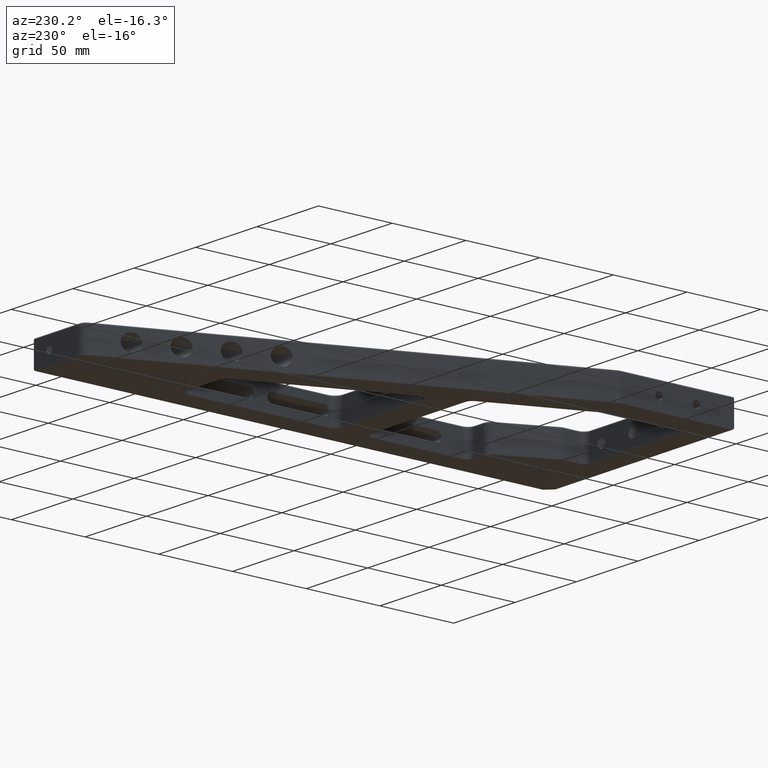
[diagram: clean part render]
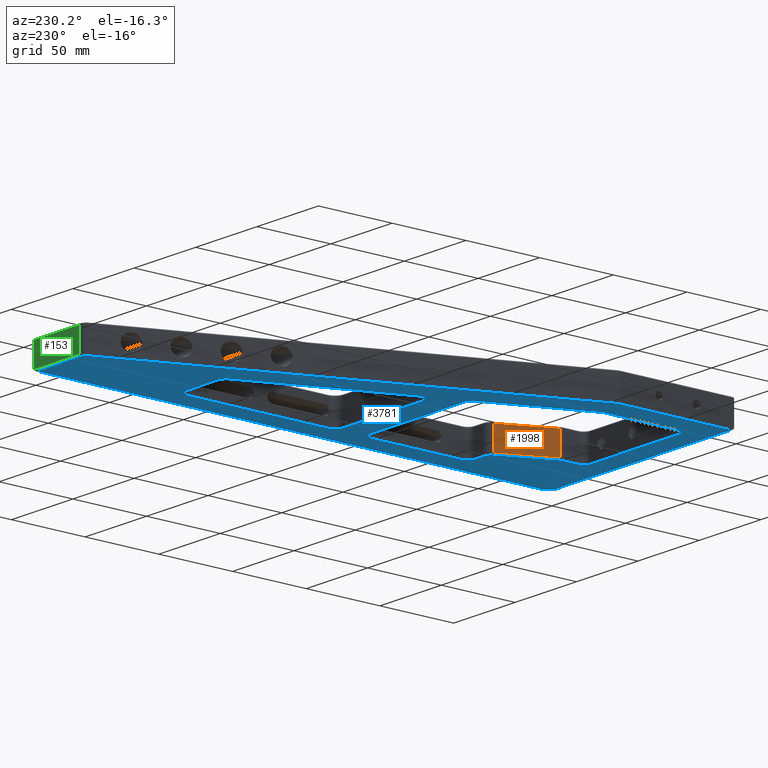
[diagram: same view with three faces highlighted in distinct colors, each labeled with its STEP entity id]
A machine part, auxiliary view with three faces highlighted in distinct colors.
Their STEP definitions:

[orange] entity #1998 — the highlighted planar face has unit normal (0.9087, -0.4175, 0).
#31 = ORIENTED_EDGE ( 'NONE', *, *, #2823, .T. ) ;
#392 = LINE ( 'NONE', #3440, #2690 ) ;
#402 = DIRECTION ( 'NONE',  ( 0.4175001715507113400, 0.9086768439633127200, -0.0000000000000000000 ) ) ;
#576 = ORIENTED_EDGE ( 'NONE', *, *, #5038, .T. ) ;
#693 = EDGE_CURVE ( 'NONE', #1255, #2474, #3971, .T. ) ;
#867 = EDGE_LOOP ( 'NONE', ( #31, #5559, #2348, #576 ) ) ;
#1070 = DIRECTION ( 'NONE',  ( 0.9086768439633127200, -0.4175001715507113400, 0.0000000000000000000 ) ) ;
#1128 = CARTESIAN_POINT ( 'NONE',  ( 100.4566157801834400, 33.99381081569337900, 1.000000000000000900 ) ) ;
#1255 = VERTEX_POINT ( 'NONE', #2140 ) ;
#1316 = DIRECTION ( 'NONE',  ( -0.4175001715507113400, -0.9086768439633127200, -0.0000000000000000000 ) ) ;
#1390 = VECTOR ( 'NONE', #1316, 1000.000000000000000 ) ;
#1709 = VECTOR ( 'NONE', #402, 1000.000000000000000 ) ;
#1998 = ADVANCED_FACE ( 'NONE', ( #4543 ), #2363, .F. ) ;
#2134 = CARTESIAN_POINT ( 'NONE',  ( 100.4566157801834400, 33.99381081569337900, -2.000000000000001800 ) ) ;
#2140 = CARTESIAN_POINT ( 'NONE',  ( 115.6618247184273100, 67.08750085775355400, 1.000000000000000900 ) ) ;
#2348 = ORIENTED_EDGE ( 'NONE', *, *, #4279, .T. ) ;
#2363 = PLANE ( 'NONE',  #3871 ) ;
#2474 = VERTEX_POINT ( 'NONE', #1128 ) ;
#2690 = VECTOR ( 'NONE', #3006, 1000.000000000000000 ) ;
#2801 = CARTESIAN_POINT ( 'NONE',  ( 117.0000000000000000, 70.00000000000000000, -2.000000000000001800 ) ) ;
#2823 = EDGE_CURVE ( 'NONE', #3889, #1255, #392, .T. ) ;
#3006 = DIRECTION ( 'NONE',  ( -0.0000000000000000000, -0.0000000000000000000, -1.000000000000000000 ) ) ;
#3440 = CARTESIAN_POINT ( 'NONE',  ( 115.6618247184273100, 67.08750085775355400, -2.000000000000001800 ) ) ;
#3542 = CARTESIAN_POINT ( 'NONE',  ( 100.4566157801834400, 33.99381081569337900, 17.00000000000001400 ) ) ;
#3871 = AXIS2_PLACEMENT_3D ( 'NONE', #2801, #1070, #4109 ) ;
#3889 = VERTEX_POINT ( 'NONE', #4847 ) ;
#3909 = CARTESIAN_POINT ( 'NONE',  ( 117.0000000000000000, 70.00000000000000000, 1.000000000000000900 ) ) ;
#3971 = LINE ( 'NONE', #3909, #1390 ) ;
#4109 = DIRECTION ( 'NONE',  ( 0.4175001715507113400, 0.9086768439633127200, 0.0000000000000000000 ) ) ;
#4189 = LINE ( 'NONE', #2134, #4450 ) ;
#4279 = EDGE_CURVE ( 'NONE', #2474, #4633, #4189, .T. ) ;
#4450 = VECTOR ( 'NONE', #4733, 1000.000000000000000 ) ;
#4543 = FACE_OUTER_BOUND ( 'NONE', #867, .T. ) ;
#4633 = VERTEX_POINT ( 'NONE', #3542 ) ;
#4726 = CARTESIAN_POINT ( 'NONE',  ( 115.6618247184273100, 67.08750085775355400, 17.00000000000001400 ) ) ;
#4733 = DIRECTION ( 'NONE',  ( 0.0000000000000000000, 0.0000000000000000000, 1.000000000000000000 ) ) ;
#4847 = CARTESIAN_POINT ( 'NONE',  ( 115.6618247184273100, 67.08750085775355400, 17.00000000000001400 ) ) ;
#5038 = EDGE_CURVE ( 'NONE', #4633, #3889, #5165, .T. ) ;
#5165 = LINE ( 'NONE', #4726, #1709 ) ;
#5559 = ORIENTED_EDGE ( 'NONE', *, *, #693, .T. ) ;

[blue] entity #3781 — the highlighted planar face has unit normal (0, 0, 1).
#19 = EDGE_CURVE ( 'NONE', #5241, #626, #4537, .T. ) ;
#67 = DIRECTION ( 'NONE',  ( 1.000000000000000000, -0.0000000000000000000, 0.0000000000000000000 ) ) ;
#85 = VERTEX_POINT ( 'NONE', #2352 ) ;
#97 = ORIENTED_EDGE ( 'NONE', *, *, #5145, .T. ) ;
#120 = DIRECTION ( 'NONE',  ( -0.0000000000000000000, 0.0000000000000000000, 1.000000000000000000 ) ) ;
#162 = CARTESIAN_POINT ( 'NONE',  ( 149.0000000000000000, 0.0000000000000000000, 0.0000000000000000000 ) ) ;
#177 = CARTESIAN_POINT ( 'NONE',  ( 23.99999999999999600, 72.22247876344911800, 0.0000000000000000000 ) ) ;
#179 = CARTESIAN_POINT ( 'NONE',  ( 133.0000000000000000, 74.00000000000001400, 0.0000000000000000000 ) ) ;
#184 = CIRCLE ( 'NONE', #3056, 5.000000000000000900 ) ;
#223 = EDGE_CURVE ( 'NONE', #2839, #3821, #1939, .T. ) ;
#266 = VERTEX_POINT ( 'NONE', #4535 ) ;
#282 = CIRCLE ( 'NONE', #1562, 5.000000000000004400 ) ;
#296 = VECTOR ( 'NONE', #1024, 1000.000000000000000 ) ;
#306 = CARTESIAN_POINT ( 'NONE',  ( 127.0000000000000300, 158.9999999999999700, 0.0000000000000000000 ) ) ;
#342 = LINE ( 'NONE', #1857, #1642 ) ;
#345 = VERTEX_POINT ( 'NONE', #306 ) ;
#366 = LINE ( 'NONE', #3307, #1378 ) ;
#401 = EDGE_CURVE ( 'NONE', #766, #3454, #1328, .T. ) ;
#420 = ORIENTED_EDGE ( 'NONE', *, *, #4466, .T. ) ;
#422 = CARTESIAN_POINT ( 'NONE',  ( 0.0000000000000000000, 0.0000000000000000000, 0.0000000000000000000 ) ) ;
#459 = CARTESIAN_POINT ( 'NONE',  ( 128.0000000000000000, 69.00000000000000000, 0.0000000000000000000 ) ) ;
#473 = VECTOR ( 'NONE', #5400, 1000.000000000000000 ) ;
#474 = CARTESIAN_POINT ( 'NONE',  ( 4.999999999999985800, 76.76854457851666800, 0.0000000000000000000 ) ) ;
#485 = DIRECTION ( 'NONE',  ( -0.0000000000000000000, 0.0000000000000000000, 1.000000000000000000 ) ) ;
#497 = CARTESIAN_POINT ( 'NONE',  ( 149.0000000000000000, 5.414213562373107400, 0.0000000000000000000 ) ) ;
#526 = EDGE_LOOP ( 'NONE', ( #4269, #2484, #4460, #2236, #4545, #5057, #2993, #1211, #4011, #97, #1703, #3470, #2080, #5548, #3765, #652 ) ) ;
#528 = CARTESIAN_POINT ( 'NONE',  ( 62.56308649022202000, 159.0000000000000000, 0.0000000000000000000 ) ) ;
#548 = EDGE_CURVE ( 'NONE', #3068, #2505, #2073, .T. ) ;
#549 = DIRECTION ( 'NONE',  ( -1.000000000000000000, 0.0000000000000000000, -0.0000000000000000000 ) ) ;
#558 = VERTEX_POINT ( 'NONE', #1341 ) ;
#560 = FACE_BOUND ( 'NONE', #2566, .T. ) ;
#607 = DIRECTION ( 'NONE',  ( 1.000000000000000000, 0.0000000000000000000, 0.0000000000000000000 ) ) ;
#626 = VERTEX_POINT ( 'NONE', #3719 ) ;
#637 = CARTESIAN_POINT ( 'NONE',  ( 49.76779119832499300, 136.0000000000000000, 0.0000000000000000000 ) ) ;
#639 = EDGE_CURVE ( 'NONE', #2505, #2461, #1801, .T. ) ;
#652 = ORIENTED_EDGE ( 'NONE', *, *, #4172, .T. ) ;
#717 = AXIS2_PLACEMENT_3D ( 'NONE', #3070, #485, #3499 ) ;
#720 = CARTESIAN_POINT ( 'NONE',  ( 18.99999999999998900, 22.00000000000000700, 0.0000000000000000000 ) ) ;
#766 = VERTEX_POINT ( 'NONE', #3952 ) ;
#828 = ORIENTED_EDGE ( 'NONE', *, *, #3847, .T. ) ;
#855 = CARTESIAN_POINT ( 'NONE',  ( 49.76779119832499300, 141.0000000000000000, 0.0000000000000000000 ) ) ;
#884 = VECTOR ( 'NONE', #1228, 1000.000000000000000 ) ;
#897 = CARTESIAN_POINT ( 'NONE',  ( 127.0000000000000300, 164.9999999999999700, 0.0000000000000000000 ) ) ;
#907 = DIRECTION ( 'NONE',  ( 1.000000000000000000, -3.469446951953613400E-015, 0.0000000000000000000 ) ) ;
#921 = DIRECTION ( 'NONE',  ( -0.0000000000000000000, 0.0000000000000000000, 1.000000000000000000 ) ) ;
#922 = DIRECTION ( 'NONE',  ( -0.0000000000000000000, 0.0000000000000000000, 1.000000000000000000 ) ) ;
#976 = CARTESIAN_POINT ( 'NONE',  ( 0.0000000000000000000, 266.0000000000000000, 0.0000000000000000000 ) ) ;
#988 = LINE ( 'NONE', #976, #3152 ) ;
#993 = AXIS2_PLACEMENT_3D ( 'NONE', #2704, #120, #3136 ) ;
#1024 = DIRECTION ( 'NONE',  ( 0.0000000000000000000, 1.000000000000000000, -0.0000000000000000000 ) ) ;
#1062 = DIRECTION ( 'NONE',  ( 1.000000000000000000, 0.0000000000000000000, 0.0000000000000000000 ) ) ;
#1080 = CARTESIAN_POINT ( 'NONE',  ( 18.99999999999998600, 0.0000000000000000000, 0.0000000000000000000 ) ) ;
#1144 = EDGE_CURVE ( 'NONE', #2286, #558, #3893, .T. ) ;
#1155 = DIRECTION ( 'NONE',  ( 9.251858538542971800E-016, 1.000000000000000000, 0.0000000000000000000 ) ) ;
#1202 = CIRCLE ( 'NONE', #2191, 5.000000000000000900 ) ;
#1211 = ORIENTED_EDGE ( 'NONE', *, *, #3959, .T. ) ;
#1218 = VECTOR ( 'NONE', #1543, 1000.000000000000000 ) ;
#1228 = DIRECTION ( 'NONE',  ( 0.4175001715507113400, 0.9086768439633127200, 0.0000000000000000000 ) ) ;
#1233 = VERTEX_POINT ( 'NONE', #720 ) ;
#1240 = EDGE_CURVE ( 'NONE', #5401, #2839, #366, .T. ) ;
#1296 = DIRECTION ( 'NONE',  ( 1.000000000000000000, 0.0000000000000000000, 0.0000000000000000000 ) ) ;
#1322 = CARTESIAN_POINT ( 'NONE',  ( 0.0000000000000000000, 1.000000000000000900, 0.0000000000000000000 ) ) ;
#1328 = LINE ( 'NONE', #4841, #4181 ) ;
#1334 = LINE ( 'NONE', #1322, #2203 ) ;
#1338 = DIRECTION ( 'NONE',  ( 1.000000000000000000, 0.0000000000000000000, 0.0000000000000000000 ) ) ;
#1341 = CARTESIAN_POINT ( 'NONE',  ( 120.2052089382438900, 69.00000000000000000, 0.0000000000000000000 ) ) ;
#1348 = ORIENTED_EDGE ( 'NONE', *, *, #1931, .T. ) ;
#1376 = DIRECTION ( 'NONE',  ( -1.000000000000000000, -0.0000000000000000000, -0.0000000000000000000 ) ) ;
#1378 = VECTOR ( 'NONE', #1155, 1000.000000000000000 ) ;
#1401 = EDGE_CURVE ( 'NONE', #2461, #2611, #1990, .T. ) ;
#1419 = VERTEX_POINT ( 'NONE', #497 ) ;
#1439 = CARTESIAN_POINT ( 'NONE',  ( 133.0000000000000900, 4.163336342344337000E-014, 0.0000000000000000000 ) ) ;
#1466 = CIRCLE ( 'NONE', #4029, 6.000000000000005300 ) ;
#1506 = DIRECTION ( 'NONE',  ( -0.0000000000000000000, 0.0000000000000000000, 1.000000000000000000 ) ) ;
#1543 = DIRECTION ( 'NONE',  ( -1.757250961937032100E-016, 1.000000000000000000, -0.0000000000000000000 ) ) ;
#1562 = AXIS2_PLACEMENT_3D ( 'NONE', #3511, #922, #3969 ) ;
#1587 = VECTOR ( 'NONE', #4900, 1000.000000000000000 ) ;
#1603 = VERTEX_POINT ( 'NONE', #2445 ) ;
#1642 = VECTOR ( 'NONE', #1930, 1000.000000000000000 ) ;
#1676 = CARTESIAN_POINT ( 'NONE',  ( 70.95873715759418600, -32.60266301835407200, 0.0000000000000000000 ) ) ;
#1699 = AXIS2_PLACEMENT_3D ( 'NONE', #2733, #1906, #4933 ) ;
#1703 = ORIENTED_EDGE ( 'NONE', *, *, #401, .T. ) ;
#1738 = CARTESIAN_POINT ( 'NONE',  ( 101.0000000000000000, 31.90630995793983300, 0.0000000000000000000 ) ) ;
#1801 = CIRCLE ( 'NONE', #5111, 4.000000000000003600 ) ;
#1841 = LINE ( 'NONE', #1439, #1587 ) ;
#1847 = ORIENTED_EDGE ( 'NONE', *, *, #3923, .T. ) ;
#1857 = CARTESIAN_POINT ( 'NONE',  ( -1.734723475976807100E-015, 17.00000000000000000, 0.0000000000000000000 ) ) ;
#1906 = DIRECTION ( 'NONE',  ( 0.0000000000000000000, -0.0000000000000000000, -1.000000000000000000 ) ) ;
#1930 = DIRECTION ( 'NONE',  ( 1.000000000000000000, 8.673617379884035500E-017, 0.0000000000000000000 ) ) ;
#1931 = EDGE_CURVE ( 'NONE', #1603, #266, #3939, .T. ) ;
#1939 = CIRCLE ( 'NONE', #1699, 4.000000000000003600 ) ;
#1940 = DIRECTION ( 'NONE',  ( -0.0000000000000000000, 0.0000000000000000000, 1.000000000000000000 ) ) ;
#1946 = VERTEX_POINT ( 'NONE', #5385 ) ;
#1990 = LINE ( 'NONE', #5260, #2997 ) ;
#2050 = CARTESIAN_POINT ( 'NONE',  ( 100.9999999999999900, 22.00000000000000700, 0.0000000000000000000 ) ) ;
#2073 = LINE ( 'NONE', #4391, #5396 ) ;
#2080 = ORIENTED_EDGE ( 'NONE', *, *, #5153, .T. ) ;
#2084 = AXIS2_PLACEMENT_3D ( 'NONE', #2439, #5469, #2867 ) ;
#2144 = EDGE_CURVE ( 'NONE', #3849, #85, #1841, .T. ) ;
#2145 = DIRECTION ( 'NONE',  ( 1.000000000000000000, -1.387778780781444400E-014, 0.0000000000000000000 ) ) ;
#2146 = CIRCLE ( 'NONE', #717, 5.000000000000004400 ) ;
#2166 = VECTOR ( 'NONE', #3079, 1000.000000000000000 ) ;
#2172 = LINE ( 'NONE', #1676, #884 ) ;
#2191 = AXIS2_PLACEMENT_3D ( 'NONE', #177, #3191, #607 ) ;
#2194 = CARTESIAN_POINT ( 'NONE',  ( 113.3725425842121100, 345.0000000000000000, 0.0000000000000000000 ) ) ;
#2203 = VECTOR ( 'NONE', #1376, 1000.000000000000000 ) ;
#2212 = CARTESIAN_POINT ( 'NONE',  ( 133.0000000000000300, 164.9999999999999700, 0.0000000000000000000 ) ) ;
#2216 = EDGE_CURVE ( 'NONE', #4685, #3671, #2585, .T. ) ;
#2218 = CARTESIAN_POINT ( 'NONE',  ( 19.36408072716606200, 74.09551173052867100, 0.0000000000000000000 ) ) ;
#2236 = ORIENTED_EDGE ( 'NONE', *, *, #223, .T. ) ;
#2268 = CARTESIAN_POINT ( 'NONE',  ( 0.0000000000000000000, 69.00000000000000000, 0.0000000000000000000 ) ) ;
#2286 = VERTEX_POINT ( 'NONE', #3213 ) ;
#2316 = CARTESIAN_POINT ( 'NONE',  ( 133.0000000000000000, 0.0000000000000000000, 0.0000000000000000000 ) ) ;
#2325 = DIRECTION ( 'NONE',  ( -0.0000000000000000000, -1.000000000000000000, -0.0000000000000000000 ) ) ;
#2338 = CARTESIAN_POINT ( 'NONE',  ( 120.2052089382438900, 65.00000000000000000, 0.0000000000000000000 ) ) ;
#2352 = CARTESIAN_POINT ( 'NONE',  ( 133.0000000000000300, 260.0000000000000000, 0.0000000000000000000 ) ) ;
#2400 = CARTESIAN_POINT ( 'NONE',  ( 1.000000000000000000, 0.0000000000000000000, 0.0000000000000000000 ) ) ;
#2412 = EDGE_CURVE ( 'NONE', #3454, #4750, #2526, .T. ) ;
#2438 = VERTEX_POINT ( 'NONE', #4122 ) ;
#2439 = CARTESIAN_POINT ( 'NONE',  ( 100.9455779445615500, 260.0000000000000000, 0.0000000000000000000 ) ) ;
#2445 = CARTESIAN_POINT ( 'NONE',  ( 95.38247481716082600, 262.2476395604954900, 0.0000000000000000000 ) ) ;
#2461 = VERTEX_POINT ( 'NONE', #3723 ) ;
#2484 = ORIENTED_EDGE ( 'NONE', *, *, #3901, .T. ) ;
#2505 = VERTEX_POINT ( 'NONE', #5495 ) ;
#2513 = DIRECTION ( 'NONE',  ( -0.7071067811865474600, -0.7071067811865474600, -0.0000000000000000000 ) ) ;
#2526 = CIRCLE ( 'NONE', #3951, 4.999999999999997300 ) ;
#2539 = CARTESIAN_POINT ( 'NONE',  ( 149.0000000000000000, 349.0000000000000000, 0.0000000000000000000 ) ) ;
#2564 = PLANE ( 'NONE',  #5363 ) ;
#2566 = EDGE_LOOP ( 'NONE', ( #4689, #4291, #1847, #4295, #1348, #828, #3960, #2979 ) ) ;
#2585 = LINE ( 'NONE', #2316, #296 ) ;
#2588 = DIRECTION ( 'NONE',  ( 0.0000000000000000000, -0.0000000000000000000, -1.000000000000000000 ) ) ;
#2593 = ORIENTED_EDGE ( 'NONE', *, *, #3300, .T. ) ;
#2599 = EDGE_CURVE ( 'NONE', #3821, #2286, #2172, .T. ) ;
#2611 = VERTEX_POINT ( 'NONE', #2539 ) ;
#2635 = LINE ( 'NONE', #2268, #4808 ) ;
#2704 = CARTESIAN_POINT ( 'NONE',  ( 95.99999999999998600, 22.00000000000000700, 0.0000000000000000000 ) ) ;
#2710 = ORIENTED_EDGE ( 'NONE', *, *, #3829, .T. ) ;
#2731 = VECTOR ( 'NONE', #3785, 1000.000000000000000 ) ;
#2733 = CARTESIAN_POINT ( 'NONE',  ( 105.0000000000000100, 31.90630995793981800, 0.0000000000000000000 ) ) ;
#2738 = AXIS2_PLACEMENT_3D ( 'NONE', #3509, #921, #3968 ) ;
#2743 = CARTESIAN_POINT ( 'NONE',  ( 1.291264581732802800, 78.26697095218024500, 0.0000000000000000000 ) ) ;
#2774 = DIRECTION ( 'NONE',  ( 1.000000000000000000, 0.0000000000000000000, 0.0000000000000000000 ) ) ;
#2817 = CARTESIAN_POINT ( 'NONE',  ( -9.088816372933486300, 3.672120176465065700, 0.0000000000000000000 ) ) ;
#2831 = VERTEX_POINT ( 'NONE', #4765 ) ;
#2839 = VERTEX_POINT ( 'NONE', #1738 ) ;
#2867 = DIRECTION ( 'NONE',  ( 1.000000000000000000, 0.0000000000000000000, 0.0000000000000000000 ) ) ;
#2979 = ORIENTED_EDGE ( 'NONE', *, *, #4377, .T. ) ;
#2993 = ORIENTED_EDGE ( 'NONE', *, *, #5217, .T. ) ;
#2997 = VECTOR ( 'NONE', #67, 1000.000000000000000 ) ;
#3056 = AXIS2_PLACEMENT_3D ( 'NONE', #4099, #1506, #4533 ) ;
#3068 = VERTEX_POINT ( 'NONE', #2743 ) ;
#3070 = CARTESIAN_POINT ( 'NONE',  ( 128.0000000000000000, 74.00000000000001400, 0.0000000000000000000 ) ) ;
#3071 = EDGE_CURVE ( 'NONE', #2611, #1419, #4665, .T. ) ;
#3079 = DIRECTION ( 'NONE',  ( -0.3746065934159091800, -0.9271838545667885300, 0.0000000000000000000 ) ) ;
#3136 = DIRECTION ( 'NONE',  ( 1.000000000000000000, 0.0000000000000000000, 0.0000000000000000000 ) ) ;
#3152 = VECTOR ( 'NONE', #549, 1000.000000000000000 ) ;
#3165 = EDGE_CURVE ( 'NONE', #4728, #1233, #5542, .T. ) ;
#3174 = CIRCLE ( 'NONE', #3500, 6.000000000000005300 ) ;
#3191 = DIRECTION ( 'NONE',  ( -0.0000000000000000000, 0.0000000000000000000, 1.000000000000000000 ) ) ;
#3213 = CARTESIAN_POINT ( 'NONE',  ( 116.5705015623906300, 66.67000068620285400, 0.0000000000000000000 ) ) ;
#3217 = VECTOR ( 'NONE', #4116, 1000.000000000000000 ) ;
#3228 = EDGE_CURVE ( 'NONE', #1946, #1603, #5272, .T. ) ;
#3230 = CARTESIAN_POINT ( 'NONE',  ( 18.99999999999999600, 72.22247876344911800, 0.0000000000000000000 ) ) ;
#3300 = EDGE_CURVE ( 'NONE', #1419, #2831, #3413, .T. ) ;
#3307 = CARTESIAN_POINT ( 'NONE',  ( 100.9999999999999700, -9.714451465470119700E-014, 0.0000000000000000000 ) ) ;
#3335 = EDGE_CURVE ( 'NONE', #5205, #345, #3897, .T. ) ;
#3340 = ORIENTED_EDGE ( 'NONE', *, *, #1401, .T. ) ;
#3413 = LINE ( 'NONE', #5536, #4576 ) ;
#3454 = VERTEX_POINT ( 'NONE', #855 ) ;
#3470 = ORIENTED_EDGE ( 'NONE', *, *, #2412, .T. ) ;
#3490 = VECTOR ( 'NONE', #2325, 1000.000000000000000 ) ;
#3493 = DIRECTION ( 'NONE',  ( 0.0000000000000000000, -0.0000000000000000000, -1.000000000000000000 ) ) ;
#3499 = DIRECTION ( 'NONE',  ( 1.000000000000000000, 0.0000000000000000000, 0.0000000000000000000 ) ) ;
#3500 = AXIS2_PLACEMENT_3D ( 'NONE', #4534, #1940, #4977 ) ;
#3509 = CARTESIAN_POINT ( 'NONE',  ( 62.56308649022202000, 165.0000000000000000, 0.0000000000000000000 ) ) ;
#3511 = CARTESIAN_POINT ( 'NONE',  ( 128.0000000000000000, 136.0000000000000000, 0.0000000000000000000 ) ) ;
#3512 = VERTEX_POINT ( 'NONE', #4776 ) ;
#3564 = CIRCLE ( 'NONE', #2738, 6.000000000000005300 ) ;
#3575 = CARTESIAN_POINT ( 'NONE',  ( 1.000000000000000000, 1.000000000000000900, 0.0000000000000000000 ) ) ;
#3603 = AXIS2_PLACEMENT_3D ( 'NONE', #474, #3493, #907 ) ;
#3658 = DIRECTION ( 'NONE',  ( -0.0000000000000000000, 0.0000000000000000000, 1.000000000000000000 ) ) ;
#3671 = VERTEX_POINT ( 'NONE', #4884 ) ;
#3719 = CARTESIAN_POINT ( 'NONE',  ( 0.9999999999999865700, 76.76854457851666800, 0.0000000000000000000 ) ) ;
#3723 = CARTESIAN_POINT ( 'NONE',  ( 113.3725425842121100, 349.0000000000000000, 0.0000000000000000000 ) ) ;
#3765 = ORIENTED_EDGE ( 'NONE', *, *, #3165, .T. ) ;
#3781 = ADVANCED_FACE ( 'NONE', ( #4771, #5060, #560 ), #2564, .F. ) ;
#3785 = DIRECTION ( 'NONE',  ( 1.000000000000000000, -3.611669139550354700E-016, 0.0000000000000000000 ) ) ;
#3814 = VERTEX_POINT ( 'NONE', #459 ) ;
#3821 = VERTEX_POINT ( 'NONE', #3927 ) ;
#3829 = EDGE_CURVE ( 'NONE', #626, #3068, #4856, .T. ) ;
#3847 = EDGE_CURVE ( 'NONE', #266, #5205, #3564, .T. ) ;
#3849 = VERTEX_POINT ( 'NONE', #2212 ) ;
#3893 = CIRCLE ( 'NONE', #5528, 4.000000000000003600 ) ;
#3894 = DIRECTION ( 'NONE',  ( -0.0000000000000000000, 0.0000000000000000000, 1.000000000000000000 ) ) ;
#3897 = LINE ( 'NONE', #5520, #2731 ) ;
#3901 = EDGE_CURVE ( 'NONE', #3512, #5401, #5482, .T. ) ;
#3921 = DIRECTION ( 'NONE',  ( 0.3746065934159093500, 0.9271838545667884200, -0.0000000000000000000 ) ) ;
#3923 = EDGE_CURVE ( 'NONE', #5214, #1946, #988, .T. ) ;
#3927 = CARTESIAN_POINT ( 'NONE',  ( 101.3652926241467600, 33.57631064414266600, 0.0000000000000000000 ) ) ;
#3938 = DIRECTION ( 'NONE',  ( -0.0000000000000000000, 0.0000000000000000000, 1.000000000000000000 ) ) ;
#3939 = LINE ( 'NONE', #2817, #473 ) ;
#3951 = AXIS2_PLACEMENT_3D ( 'NONE', #637, #3658, #1062 ) ;
#3952 = CARTESIAN_POINT ( 'NONE',  ( 128.0000000000000000, 141.0000000000000000, 0.0000000000000000000 ) ) ;
#3953 = CARTESIAN_POINT ( 'NONE',  ( -9.088816372933468600, 3.672120176465052000, 0.0000000000000000000 ) ) ;
#3959 = EDGE_CURVE ( 'NONE', #3814, #4685, #2146, .T. ) ;
#3960 = ORIENTED_EDGE ( 'NONE', *, *, #3335, .T. ) ;
#3968 = DIRECTION ( 'NONE',  ( 1.000000000000000000, 0.0000000000000000000, 0.0000000000000000000 ) ) ;
#3969 = DIRECTION ( 'NONE',  ( 1.000000000000000000, 0.0000000000000000000, 0.0000000000000000000 ) ) ;
#4011 = ORIENTED_EDGE ( 'NONE', *, *, #2216, .T. ) ;
#4027 = CARTESIAN_POINT ( 'NONE',  ( 127.0000000000000000, 266.0000000000000000, 0.0000000000000000000 ) ) ;
#4029 = AXIS2_PLACEMENT_3D ( 'NONE', #897, #3938, #1338 ) ;
#4099 = CARTESIAN_POINT ( 'NONE',  ( 23.99999999999999300, 22.00000000000000700, 0.0000000000000000000 ) ) ;
#4116 = DIRECTION ( 'NONE',  ( -1.261617073437678500E-016, -1.000000000000000000, 0.0000000000000000000 ) ) ;
#4122 = CARTESIAN_POINT ( 'NONE',  ( 23.99999999999999300, 17.00000000000000000, 0.0000000000000000000 ) ) ;
#4144 = CARTESIAN_POINT ( 'NONE',  ( 45.13187192549104100, 137.8730329670795200, 0.0000000000000000000 ) ) ;
#4153 = EDGE_CURVE ( 'NONE', #4428, #4728, #1202, .T. ) ;
#4172 = EDGE_CURVE ( 'NONE', #1233, #2438, #184, .T. ) ;
#4181 = VECTOR ( 'NONE', #4806, 1000.000000000000000 ) ;
#4269 = ORIENTED_EDGE ( 'NONE', *, *, #5242, .T. ) ;
#4291 = ORIENTED_EDGE ( 'NONE', *, *, #4714, .T. ) ;
#4295 = ORIENTED_EDGE ( 'NONE', *, *, #3228, .T. ) ;
#4344 = EDGE_LOOP ( 'NONE', ( #2593, #420, #5551, #2710, #4640, #4870, #3340, #5600 ) ) ;
#4377 = EDGE_CURVE ( 'NONE', #345, #3849, #1466, .T. ) ;
#4391 = CARTESIAN_POINT ( 'NONE',  ( -26.07434195713099000, 10.53471797207482300, 0.0000000000000000000 ) ) ;
#4428 = VERTEX_POINT ( 'NONE', #2218 ) ;
#4453 = DIRECTION ( 'NONE',  ( 1.000000000000000000, 0.0000000000000000000, 0.0000000000000000000 ) ) ;
#4460 = ORIENTED_EDGE ( 'NONE', *, *, #1240, .T. ) ;
#4466 = EDGE_CURVE ( 'NONE', #2831, #5241, #1334, .T. ) ;
#4533 = DIRECTION ( 'NONE',  ( 1.000000000000000000, 0.0000000000000000000, 0.0000000000000000000 ) ) ;
#4534 = CARTESIAN_POINT ( 'NONE',  ( 127.0000000000000000, 260.0000000000000000, 0.0000000000000000000 ) ) ;
#4535 = CARTESIAN_POINT ( 'NONE',  ( 56.99998336282126100, 167.2476395604954600, 0.0000000000000000000 ) ) ;
#4537 = LINE ( 'NONE', #2400, #1218 ) ;
#4545 = ORIENTED_EDGE ( 'NONE', *, *, #2599, .T. ) ;
#4576 = VECTOR ( 'NONE', #2513, 1000.000000000000100 ) ;
#4640 = ORIENTED_EDGE ( 'NONE', *, *, #548, .T. ) ;
#4665 = LINE ( 'NONE', #162, #3490 ) ;
#4685 = VERTEX_POINT ( 'NONE', #179 ) ;
#4689 = ORIENTED_EDGE ( 'NONE', *, *, #2144, .T. ) ;
#4714 = EDGE_CURVE ( 'NONE', #85, #5214, #3174, .T. ) ;
#4728 = VERTEX_POINT ( 'NONE', #3230 ) ;
#4750 = VERTEX_POINT ( 'NONE', #4144 ) ;
#4765 = CARTESIAN_POINT ( 'NONE',  ( 144.5857864376268700, 0.9999999999999870100, 0.0000000000000000000 ) ) ;
#4771 = FACE_OUTER_BOUND ( 'NONE', #4344, .T. ) ;
#4776 = CARTESIAN_POINT ( 'NONE',  ( 95.99999999999998600, 17.00000000000001400, 0.0000000000000000000 ) ) ;
#4806 = DIRECTION ( 'NONE',  ( -1.000000000000000000, 0.0000000000000000000, -0.0000000000000000000 ) ) ;
#4808 = VECTOR ( 'NONE', #4453, 1000.000000000000000 ) ;
#4841 = CARTESIAN_POINT ( 'NONE',  ( 0.0000000000000000000, 141.0000000000000000, 0.0000000000000000000 ) ) ;
#4856 = CIRCLE ( 'NONE', #3603, 4.000000000000000900 ) ;
#4870 = ORIENTED_EDGE ( 'NONE', *, *, #639, .T. ) ;
#4875 = LINE ( 'NONE', #3953, #2166 ) ;
#4884 = CARTESIAN_POINT ( 'NONE',  ( 133.0000000000000000, 136.0000000000000000, 0.0000000000000000000 ) ) ;
#4900 = DIRECTION ( 'NONE',  ( -2.643388153869419300E-016, 1.000000000000000000, -0.0000000000000000000 ) ) ;
#4933 = DIRECTION ( 'NONE',  ( 1.000000000000000000, 0.0000000000000000000, 0.0000000000000000000 ) ) ;
#4977 = DIRECTION ( 'NONE',  ( 1.000000000000000000, 0.0000000000000000000, 0.0000000000000000000 ) ) ;
#5057 = ORIENTED_EDGE ( 'NONE', *, *, #1144, .T. ) ;
#5060 = FACE_BOUND ( 'NONE', #526, .T. ) ;
#5111 = AXIS2_PLACEMENT_3D ( 'NONE', #2194, #2588, #2145 ) ;
#5145 = EDGE_CURVE ( 'NONE', #3671, #766, #282, .T. ) ;
#5153 = EDGE_CURVE ( 'NONE', #4750, #4428, #4875, .T. ) ;
#5205 = VERTEX_POINT ( 'NONE', #528 ) ;
#5214 = VERTEX_POINT ( 'NONE', #4027 ) ;
#5217 = EDGE_CURVE ( 'NONE', #558, #3814, #2635, .T. ) ;
#5241 = VERTEX_POINT ( 'NONE', #3575 ) ;
#5242 = EDGE_CURVE ( 'NONE', #2438, #3512, #342, .T. ) ;
#5260 = CARTESIAN_POINT ( 'NONE',  ( 0.0000000000000000000, 349.0000000000000000, 0.0000000000000000000 ) ) ;
#5272 = CIRCLE ( 'NONE', #2084, 6.000000000000005300 ) ;
#5363 = AXIS2_PLACEMENT_3D ( 'NONE', #422, #3894, #1296 ) ;
#5380 = DIRECTION ( 'NONE',  ( 0.0000000000000000000, -0.0000000000000000000, -1.000000000000000000 ) ) ;
#5385 = CARTESIAN_POINT ( 'NONE',  ( 100.9455779445615500, 266.0000000000000000, 0.0000000000000000000 ) ) ;
#5396 = VECTOR ( 'NONE', #3921, 1000.000000000000100 ) ;
#5400 = DIRECTION ( 'NONE',  ( -0.3746065934159091300, -0.9271838545667885300, 0.0000000000000000000 ) ) ;
#5401 = VERTEX_POINT ( 'NONE', #2050 ) ;
#5469 = DIRECTION ( 'NONE',  ( -0.0000000000000000000, 0.0000000000000000000, 1.000000000000000000 ) ) ;
#5482 = CIRCLE ( 'NONE', #993, 5.000000000000004400 ) ;
#5495 = CARTESIAN_POINT ( 'NONE',  ( 109.6638071659449700, 346.4984263736635600, 0.0000000000000000000 ) ) ;
#5520 = CARTESIAN_POINT ( 'NONE',  ( 5.724587470723463400E-014, 159.0000000000000300, 0.0000000000000000000 ) ) ;
#5528 = AXIS2_PLACEMENT_3D ( 'NONE', #2338, #5380, #2774 ) ;
#5536 = CARTESIAN_POINT ( 'NONE',  ( 144.2928932188134500, 0.7071067811865589000, 0.0000000000000000000 ) ) ;
#5542 = LINE ( 'NONE', #1080, #3217 ) ;
#5548 = ORIENTED_EDGE ( 'NONE', *, *, #4153, .T. ) ;
#5551 = ORIENTED_EDGE ( 'NONE', *, *, #19, .T. ) ;
#5600 = ORIENTED_EDGE ( 'NONE', *, *, #3071, .T. ) ;

[green] entity #153 — the highlighted planar face has unit normal (0, -1, 0).
#20 = DIRECTION ( 'NONE',  ( -1.000000000000000000, 0.0000000000000000000, 0.0000000000000000000 ) ) ;
#45 = FACE_OUTER_BOUND ( 'NONE', #4215, .T. ) ;
#153 = ADVANCED_FACE ( 'NONE', ( #1047, #45 ), #2329, .F. ) ;
#163 = EDGE_CURVE ( 'NONE', #3498, #5277, #4383, .T. ) ;
#239 = AXIS2_PLACEMENT_3D ( 'NONE', #1126, #4597, #1571 ) ;
#322 = LINE ( 'NONE', #3479, #3621 ) ;
#486 = CARTESIAN_POINT ( 'NONE',  ( 150.0000000000000000, 350.0000000000000000, 17.00000000000001400 ) ) ;
#590 = EDGE_CURVE ( 'NONE', #5582, #1829, #643, .T. ) ;
#643 = LINE ( 'NONE', #486, #5139 ) ;
#669 = CARTESIAN_POINT ( 'NONE',  ( 137.3000000000000100, 350.0000000000000000, 9.000000000000007100 ) ) ;
#738 = VERTEX_POINT ( 'NONE', #3475 ) ;
#1003 = VERTEX_POINT ( 'NONE', #4194 ) ;
#1047 = FACE_BOUND ( 'NONE', #1300, .T. ) ;
#1107 = DIRECTION ( 'NONE',  ( 0.0000000000000000000, 0.0000000000000000000, 1.000000000000000000 ) ) ;
#1126 = CARTESIAN_POINT ( 'NONE',  ( 150.0000000000000000, 350.0000000000000000, 18.00000000000001400 ) ) ;
#1131 = ORIENTED_EDGE ( 'NONE', *, *, #590, .T. ) ;
#1300 = EDGE_LOOP ( 'NONE', ( #4863, #2283 ) ) ;
#1336 = CARTESIAN_POINT ( 'NONE',  ( 113.3725425842121100, 350.0000000000000000, 17.00000000000001400 ) ) ;
#1445 = ORIENTED_EDGE ( 'NONE', *, *, #4961, .T. ) ;
#1454 = DIRECTION ( 'NONE',  ( -0.0000000000000000000, 1.000000000000000000, -0.0000000000000000000 ) ) ;
#1571 = DIRECTION ( 'NONE',  ( 0.0000000000000000000, -0.0000000000000000000, -1.000000000000000000 ) ) ;
#1783 = AXIS2_PLACEMENT_3D ( 'NONE', #669, #3695, #1107 ) ;
#1813 = LINE ( 'NONE', #3420, #4120 ) ;
#1829 = VERTEX_POINT ( 'NONE', #3607 ) ;
#2090 = CARTESIAN_POINT ( 'NONE',  ( 150.0000000000000000, 350.0000000000000000, 18.00000000000001400 ) ) ;
#2107 = LINE ( 'NONE', #2090, #4546 ) ;
#2125 = DIRECTION ( 'NONE',  ( -0.0000000000000000000, -0.0000000000000000000, 1.000000000000000000 ) ) ;
#2283 = ORIENTED_EDGE ( 'NONE', *, *, #4739, .F. ) ;
#2329 = PLANE ( 'NONE',  #239 ) ;
#2608 = CARTESIAN_POINT ( 'NONE',  ( 137.3000000000000100, 350.0000000000000000, 11.55270000000000000 ) ) ;
#2697 = ORIENTED_EDGE ( 'NONE', *, *, #4392, .T. ) ;
#2803 = EDGE_CURVE ( 'NONE', #1003, #5582, #1813, .T. ) ;
#2917 = CIRCLE ( 'NONE', #1783, 2.552699999999990900 ) ;
#3420 = CARTESIAN_POINT ( 'NONE',  ( 113.3725425842121100, 350.0000000000000000, 18.00000000000001400 ) ) ;
#3475 = CARTESIAN_POINT ( 'NONE',  ( 150.0000000000000000, 350.0000000000000000, 1.000000000000000900 ) ) ;
#3479 = CARTESIAN_POINT ( 'NONE',  ( 150.0000000000000000, 350.0000000000000000, 1.000000000000000900 ) ) ;
#3498 = VERTEX_POINT ( 'NONE', #2608 ) ;
#3607 = CARTESIAN_POINT ( 'NONE',  ( 150.0000000000000000, 350.0000000000000000, 17.00000000000001400 ) ) ;
#3621 = VECTOR ( 'NONE', #20, 1000.000000000000000 ) ;
#3695 = DIRECTION ( 'NONE',  ( -0.0000000000000000000, 1.000000000000000000, -0.0000000000000000000 ) ) ;
#4050 = CARTESIAN_POINT ( 'NONE',  ( 137.3000000000000100, 350.0000000000000000, 9.000000000000007100 ) ) ;
#4120 = VECTOR ( 'NONE', #2125, 1000.000000000000000 ) ;
#4194 = CARTESIAN_POINT ( 'NONE',  ( 113.3725425842121100, 350.0000000000000000, 1.000000000000000900 ) ) ;
#4215 = EDGE_LOOP ( 'NONE', ( #1445, #2697, #4830, #1131 ) ) ;
#4277 = DIRECTION ( 'NONE',  ( 1.000000000000000000, -0.0000000000000000000, -0.0000000000000000000 ) ) ;
#4383 = CIRCLE ( 'NONE', #5577, 2.552699999999990900 ) ;
#4392 = EDGE_CURVE ( 'NONE', #738, #1003, #322, .T. ) ;
#4479 = DIRECTION ( 'NONE',  ( 0.0000000000000000000, 0.0000000000000000000, 1.000000000000000000 ) ) ;
#4546 = VECTOR ( 'NONE', #4698, 1000.000000000000000 ) ;
#4597 = DIRECTION ( 'NONE',  ( 0.0000000000000000000, -1.000000000000000000, 0.0000000000000000000 ) ) ;
#4698 = DIRECTION ( 'NONE',  ( -0.0000000000000000000, -0.0000000000000000000, -1.000000000000000000 ) ) ;
#4739 = EDGE_CURVE ( 'NONE', #5277, #3498, #2917, .T. ) ;
#4830 = ORIENTED_EDGE ( 'NONE', *, *, #2803, .T. ) ;
#4863 = ORIENTED_EDGE ( 'NONE', *, *, #163, .F. ) ;
#4961 = EDGE_CURVE ( 'NONE', #1829, #738, #2107, .T. ) ;
#5139 = VECTOR ( 'NONE', #4277, 1000.000000000000000 ) ;
#5277 = VERTEX_POINT ( 'NONE', #5332 ) ;
#5332 = CARTESIAN_POINT ( 'NONE',  ( 137.3000000000000100, 350.0000000000000000, 6.447300000000017100 ) ) ;
#5577 = AXIS2_PLACEMENT_3D ( 'NONE', #4050, #1454, #4479 ) ;
#5582 = VERTEX_POINT ( 'NONE', #1336 ) ;